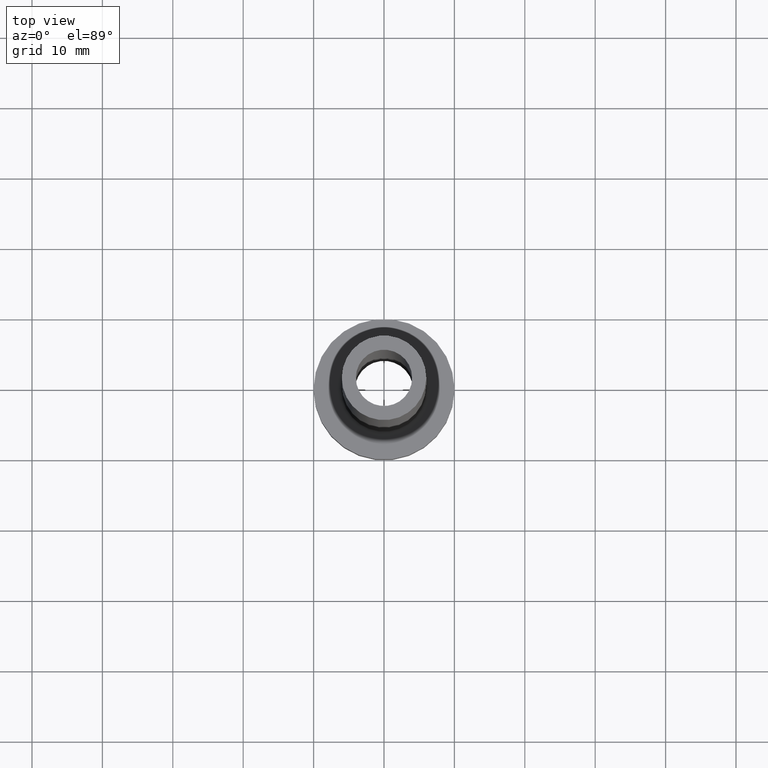
[diagram: clean part render]
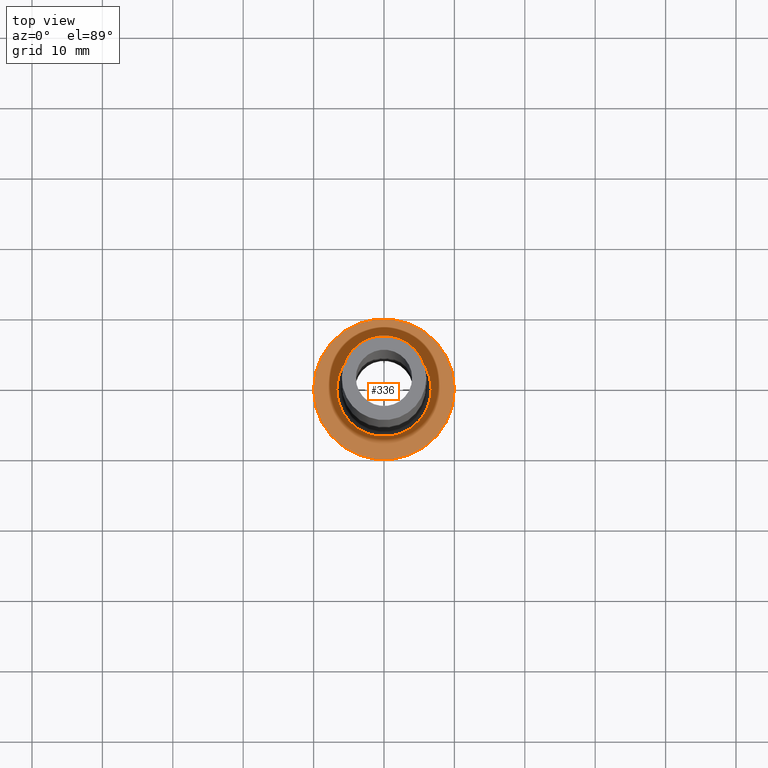
[diagram: same view with one face highlighted and labeled with its STEP entity id]
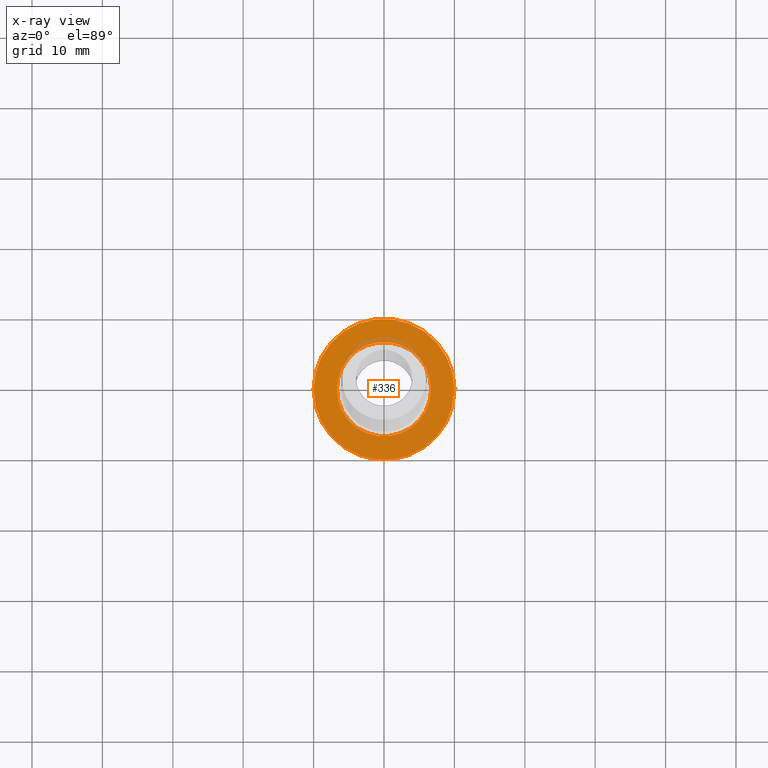
[diagram: x-ray of the same camera — body ghosted, the highlighted face saturated]
A machine part, top view. The second image highlights one B-rep face of the part: STEP entity #336.
The next image is the same camera in x-ray: the body ghosted, the highlighted face saturated — about 5% of this face is hidden behind the body in this view.
In plain terms, the highlighted planar face has unit normal (0, 0, 1).
Its self-contained STEP definition (entity closure, byte-faithful):
#13 = VERTEX_POINT ( 'NONE', #385 ) ;
#17 = PLANE ( 'NONE',  #358 ) ;
#30 = CARTESIAN_POINT ( 'NONE',  ( 0.000000000000000000, 0.000000000000000000, 7.000000000000000000 ) ) ;
#36 = AXIS2_PLACEMENT_3D ( 'NONE', #30, #305, #450 ) ;
#80 = DIRECTION ( 'NONE',  ( -0.000000000000000000, -0.000000000000000000, -1.000000000000000000 ) ) ;
#81 = CARTESIAN_POINT ( 'NONE',  ( 0.000000000000000000, 0.000000000000000000, 7.000000000000000000 ) ) ;
#83 = DIRECTION ( 'NONE',  ( 1.000000000000000000, 0.000000000000000000, 0.000000000000000000 ) ) ;
#91 = CARTESIAN_POINT ( 'NONE',  ( -6.700000000000001066, 8.205133554287267548E-16, 6.999999999999999112 ) ) ;
#96 = FACE_OUTER_BOUND ( 'NONE', #243, .T. ) ;
#121 = CARTESIAN_POINT ( 'NONE',  ( 0.000000000000000000, 0.000000000000000000, 7.000000000000000000 ) ) ;
#123 = VERTEX_POINT ( 'NONE', #91 ) ;
#128 = CIRCLE ( 'NONE', #253, 6.700000000000001066 ) ;
#144 = ORIENTED_EDGE ( 'NONE', *, *, #384, .T. ) ;
#148 = DIRECTION ( 'NONE',  ( -0.000000000000000000, -0.000000000000000000, -1.000000000000000000 ) ) ;
#152 = ORIENTED_EDGE ( 'NONE', *, *, #242, .T. ) ;
#163 = CIRCLE ( 'NONE', #36, 10.00000000000000000 ) ;
#164 = DIRECTION ( 'NONE',  ( 1.000000000000000000, 0.000000000000000000, -0.000000000000000000 ) ) ;
#193 = EDGE_LOOP ( 'NONE', ( #152, #455 ) ) ;
#200 = DIRECTION ( 'NONE',  ( 0.000000000000000000, 0.000000000000000000, 1.000000000000000000 ) ) ;
#220 = CIRCLE ( 'NONE', #457, 10.00000000000000000 ) ;
#237 = DIRECTION ( 'NONE',  ( 1.000000000000000000, 0.000000000000000000, 0.000000000000000000 ) ) ;
#239 = ORIENTED_EDGE ( 'NONE', *, *, #427, .T. ) ;
#241 = CIRCLE ( 'NONE', #447, 6.700000000000001066 ) ;
#242 = EDGE_CURVE ( 'NONE', #13, #123, #128, .T. ) ;
#243 = EDGE_LOOP ( 'NONE', ( #239, #144 ) ) ;
#253 = AXIS2_PLACEMENT_3D ( 'NONE', #395, #80, #367 ) ;
#256 = EDGE_CURVE ( 'NONE', #123, #13, #241, .T. ) ;
#297 = CARTESIAN_POINT ( 'NONE',  ( 10.00000000000000000, 1.224646799147353256E-15, 7.000000000000000000 ) ) ;
#305 = DIRECTION ( 'NONE',  ( 0.000000000000000000, 0.000000000000000000, 1.000000000000000000 ) ) ;
#309 = VERTEX_POINT ( 'NONE', #297 ) ;
#336 = ADVANCED_FACE ( 'NONE', ( #373, #96 ), #17, .T. ) ;
#358 = AXIS2_PLACEMENT_3D ( 'NONE', #411, #200, #164 ) ;
#367 = DIRECTION ( 'NONE',  ( 1.000000000000000000, 0.000000000000000000, 0.000000000000000000 ) ) ;
#373 = FACE_BOUND ( 'NONE', #193, .T. ) ;
#384 = EDGE_CURVE ( 'NONE', #309, #449, #163, .T. ) ;
#385 = CARTESIAN_POINT ( 'NONE',  ( 6.700000000000001066, 0.000000000000000000, 6.999999999999999112 ) ) ;
#395 = CARTESIAN_POINT ( 'NONE',  ( 0.000000000000000000, 0.000000000000000000, 7.000000000000000000 ) ) ;
#401 = DIRECTION ( 'NONE',  ( 0.000000000000000000, 0.000000000000000000, 1.000000000000000000 ) ) ;
#411 = CARTESIAN_POINT ( 'NONE',  ( 0.000000000000000000, 0.000000000000000000, 7.000000000000000000 ) ) ;
#427 = EDGE_CURVE ( 'NONE', #449, #309, #220, .T. ) ;
#439 = CARTESIAN_POINT ( 'NONE',  ( -10.00000000000000000, 0.000000000000000000, 7.000000000000000000 ) ) ;
#447 = AXIS2_PLACEMENT_3D ( 'NONE', #81, #148, #83 ) ;
#449 = VERTEX_POINT ( 'NONE', #439 ) ;
#450 = DIRECTION ( 'NONE',  ( 1.000000000000000000, 0.000000000000000000, 0.000000000000000000 ) ) ;
#455 = ORIENTED_EDGE ( 'NONE', *, *, #256, .T. ) ;
#457 = AXIS2_PLACEMENT_3D ( 'NONE', #121, #401, #237 ) ;